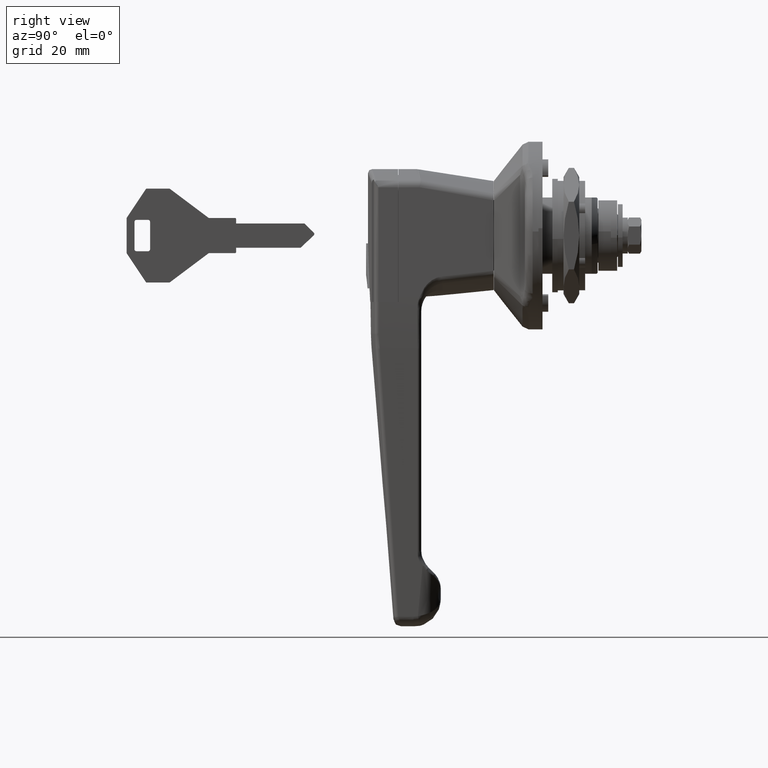
[diagram: clean part render]
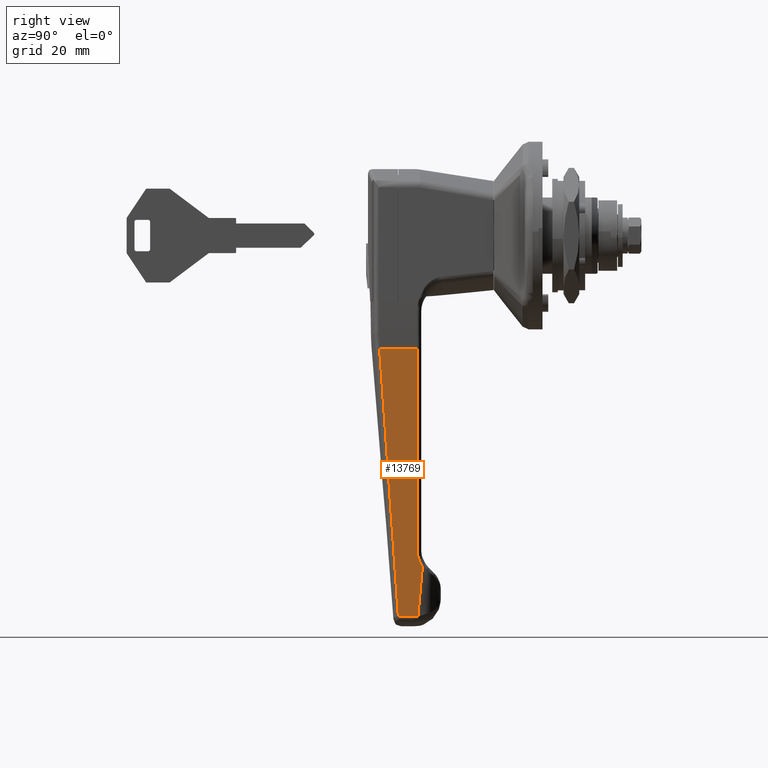
[diagram: same view with one face highlighted and labeled with its STEP entity id]
A machine part, right view. The second image highlights one B-rep face of the part: STEP entity #13769.
In plain terms, the highlighted face is a freeform B-spline surface patch.
Its self-contained STEP definition (entity closure, byte-faithful):
#7421=CARTESIAN_POINT('',(-30.691652699142050,-8.428069406423781,-84.654899154318798));
#7422=VERTEX_POINT('',#7421);
#7523=CARTESIAN_POINT('',(-32.0,-8.694515336386020,-80.579964853946592));
#7524=VERTEX_POINT('',#7523);
#7538=CARTESIAN_POINT('',(-30.691652699142050,-8.428069406423614,-84.654899154318699));
#7539=CARTESIAN_POINT('',(-32.000000033490430,-8.547558788241252,-82.827468798869972));
#7540=CARTESIAN_POINT('',(-32.0,-8.694515336386020,-80.579964853946592));
#7548=(BOUNDED_CURVE()B_SPLINE_CURVE(2,(#7538,#7539,#7540),.UNSPECIFIED.,.F.,.U.)CURVE()GEOMETRIC_REPRESENTATION_ITEM()QUASI_UNIFORM_CURVE()RATIONAL_B_SPLINE_CURVE((1.0,0.952127416383993,1.0))REPRESENTATION_ITEM(''));
#7549=EDGE_CURVE('',#7422,#7524,#7548,.T.);
#7584=CARTESIAN_POINT('',(-32.0,-12.073825860416800,-28.897928022205701));
#7585=VERTEX_POINT('',#7584);
#7599=CARTESIAN_POINT('',(-32.0,-8.694515336386020,-80.579964853946592));
#7600=CARTESIAN_POINT('',(-32.0,-12.073825860416800,-28.897928022205701));
#7601=QUASI_UNIFORM_CURVE('',1,(#7599,#7600),.UNSPECIFIED.,.F.,.U.);
#7602=EDGE_CURVE('',#7524,#7585,#7601,.T.);
#8211=CARTESIAN_POINT('',(-31.857309073119598,-7.601217072657450,-97.300500221234302));
#8212=VERTEX_POINT('',#8211);
#8374=CARTESIAN_POINT('',(-33.0,-7.592145207199439,-97.439242275684194));
#8375=VERTEX_POINT('',#8374);
#8400=CARTESIAN_POINT('',(-33.0,-7.592145207199439,-97.439242275684194));
#8401=CARTESIAN_POINT('',(-32.806731902211418,-7.592145207199438,-97.439242275684180));
#8402=CARTESIAN_POINT('',(-32.423050115862523,-7.593675845402848,-97.415833210597526));
#8403=CARTESIAN_POINT('',(-32.044944046784970,-7.598196386309260,-97.346697580721980));
#8404=CARTESIAN_POINT('',(-31.857309073119598,-7.601217072657340,-97.300500221234401));
#8405=B_SPLINE_CURVE_WITH_KNOTS('',3,(#8400,#8401,#8402,#8403,#8404),.UNSPECIFIED.,.F.,.U.,(4,1,4),(0.0,0.500000000000000,1.0),.UNSPECIFIED.);
#8406=EDGE_CURVE('',#8375,#8212,#8405,.T.);
#8425=CARTESIAN_POINT('',(-36.810766090021701,-7.592145207199439,-97.439242275684194));
#8426=VERTEX_POINT('',#8425);
#8464=CARTESIAN_POINT('',(-36.810766090021701,-7.592145207199439,-97.439242275684194));
#8465=CARTESIAN_POINT('',(-33.0,-7.592145207199439,-97.439242275684194));
#8466=QUASI_UNIFORM_CURVE('',1,(#8464,#8465),.UNSPECIFIED.,.F.,.U.);
#8467=EDGE_CURVE('',#8426,#8375,#8466,.T.);
#8586=CARTESIAN_POINT('',(-36.852808266133707,-7.607287943265270,-97.207654371133003));
#8587=VERTEX_POINT('',#8586);
#8609=CARTESIAN_POINT('',(-36.852808266133707,-7.607287943265270,-97.207654371133003));
#8610=CARTESIAN_POINT('',(-36.847095682572707,-7.602142243966577,-97.286350962875318));
#8611=CARTESIAN_POINT('',(-36.833181102243117,-7.597093489477453,-97.363564913356115));
#8612=CARTESIAN_POINT('',(-36.810766090021701,-7.592145207199439,-97.439242275684194));
#8613=QUASI_UNIFORM_CURVE('',3,(#8609,#8610,#8611,#8612),.UNSPECIFIED.,.F.,.U.);
#8614=EDGE_CURVE('',#8587,#8426,#8613,.T.);
#9480=CARTESIAN_POINT('',(-31.857309073119598,-7.601217072657452,-97.300500221234259));
#9481=CARTESIAN_POINT('',(-31.571539382079720,-7.803926328344620,-94.200333147489587));
#9482=CARTESIAN_POINT('',(-31.285769691039881,-8.006635584031795,-91.100166073744845));
#9483=CARTESIAN_POINT('',(-31.0,-8.209344839718959,-87.999999000000088));
#9484=CARTESIAN_POINT('',(-30.897217566380679,-8.282253028620563,-86.884965718106329));
#9485=CARTESIAN_POINT('',(-30.794435132761372,-8.355161217522165,-85.769932436212571));
#9486=CARTESIAN_POINT('',(-30.691652699142050,-8.428069406423768,-84.654899154318812));
#9487=B_SPLINE_CURVE_WITH_KNOTS('',3,(#9480,#9481,#9482,#9483,#9484,#9485,#9486),.UNSPECIFIED.,.F.,.U.,(4,3,4),(0.435166360639886,0.542367880394508,0.580924919274226),.UNSPECIFIED.);
#9488=EDGE_CURVE('',#8212,#7422,#9487,.T.);
#9854=CARTESIAN_POINT('',(-41.636799778329149,-12.073825860416800,-28.897928022205701));
#9855=VERTEX_POINT('',#9854);
#10110=CARTESIAN_POINT('',(-41.636799778329070,-12.073825860416809,-28.897928022205669));
#10111=CARTESIAN_POINT('',(-39.346519064385454,-9.853537082323241,-62.854276688756208));
#10112=CARTESIAN_POINT('',(-36.852808266133692,-7.607287943265280,-97.207654371133017));
#10120=(BOUNDED_CURVE()B_SPLINE_CURVE(2,(#10110,#10111,#10112),.UNSPECIFIED.,.F.,.U.)CURVE()GEOMETRIC_REPRESENTATION_ITEM()QUASI_UNIFORM_CURVE()RATIONAL_B_SPLINE_CURVE((1.0,0.999266857087360,1.0))REPRESENTATION_ITEM(''));
#10121=EDGE_CURVE('',#9855,#8587,#10120,.T.);
#13750=CARTESIAN_POINT('',(-42.183508929013840,-12.297685784346900,-25.474289752968531));
#13751=CARTESIAN_POINT('',(-42.183508929013840,-7.368285483616009,-100.862877480885900));
#13752=CARTESIAN_POINT('',(-30.144942374170480,-12.297685784346900,-25.474289752968531));
#13753=CARTESIAN_POINT('',(-30.144942374170480,-7.368285483616009,-100.862877480885900));
#13754=B_SPLINE_SURFACE_WITH_KNOTS('',1,1,((#13750,#13752),(#13751,#13753)),.UNSPECIFIED.,.F.,.F.,.U.,(2,2),(2,2),(0.0,75.549574101610489),(0.0,12.038566554843360),.UNSPECIFIED.);
#13755=ORIENTED_EDGE('',*,*,#9488,.T.);
#13756=ORIENTED_EDGE('',*,*,#7549,.T.);
#13757=ORIENTED_EDGE('',*,*,#7602,.T.);
#13758=CARTESIAN_POINT('',(-32.0,-12.073825860416800,-28.897928022205701));
#13759=CARTESIAN_POINT('',(-41.636799778329149,-12.073825860416800,-28.897928022205701));
#13760=QUASI_UNIFORM_CURVE('',1,(#13758,#13759),.UNSPECIFIED.,.F.,.U.);
#13761=EDGE_CURVE('',#7585,#9855,#13760,.T.);
#13762=ORIENTED_EDGE('',*,*,#13761,.T.);
#13763=ORIENTED_EDGE('',*,*,#10121,.T.);
#13764=ORIENTED_EDGE('',*,*,#8614,.T.);
#13765=ORIENTED_EDGE('',*,*,#8467,.T.);
#13766=ORIENTED_EDGE('',*,*,#8406,.T.);
#13767=EDGE_LOOP('',(#13755,#13756,#13757,#13762,#13763,#13764,#13765,#13766));
#13768=FACE_OUTER_BOUND('',#13767,.T.);
#13769=ADVANCED_FACE('',(#13768),#13754,.T.);